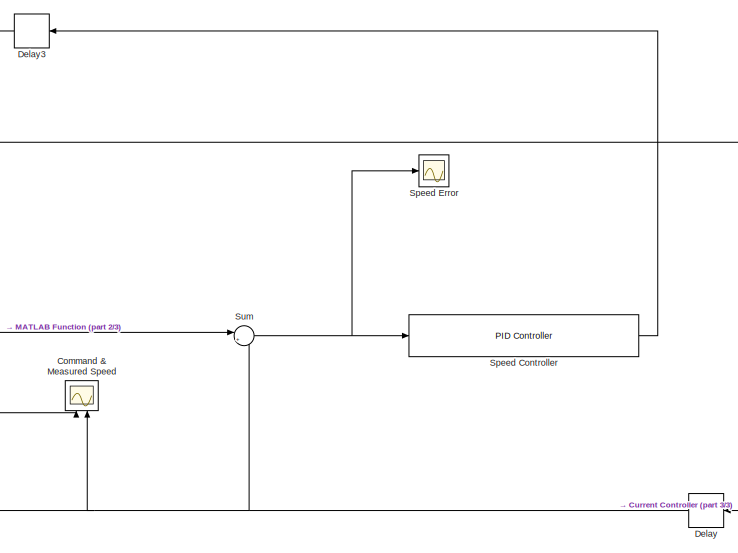
[diagram: root canvas - part 1/3, central region]
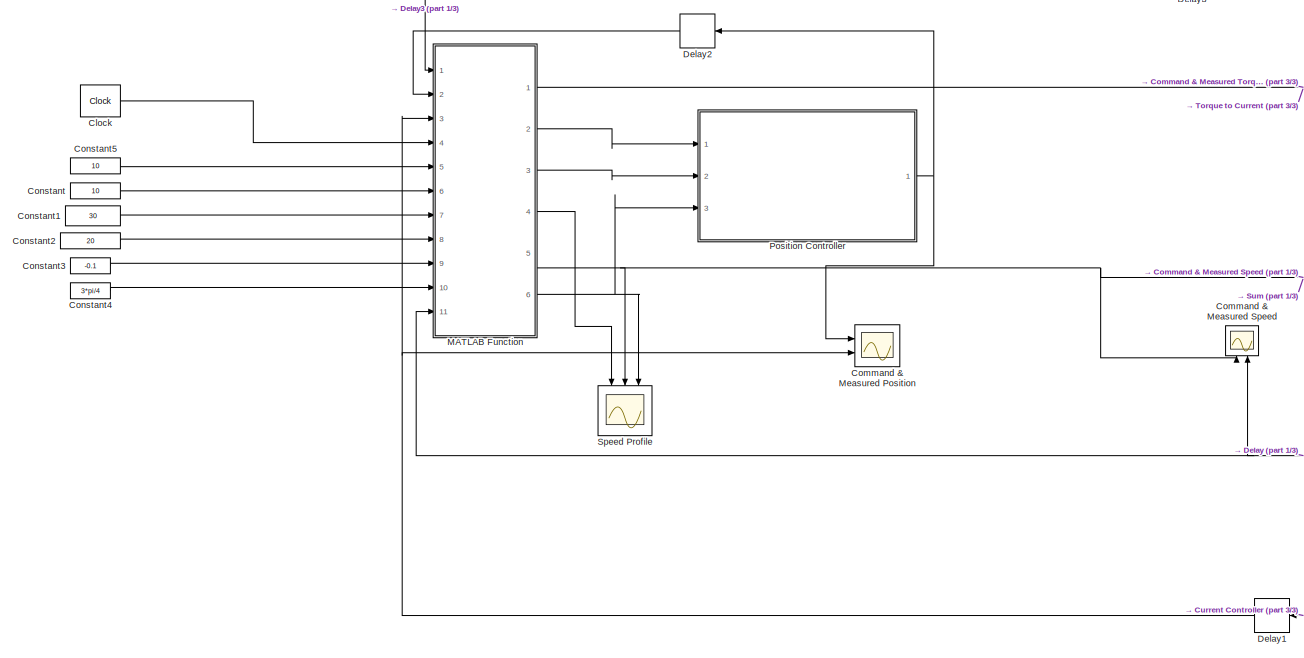
[diagram: root canvas - part 2/3, left side, full height]
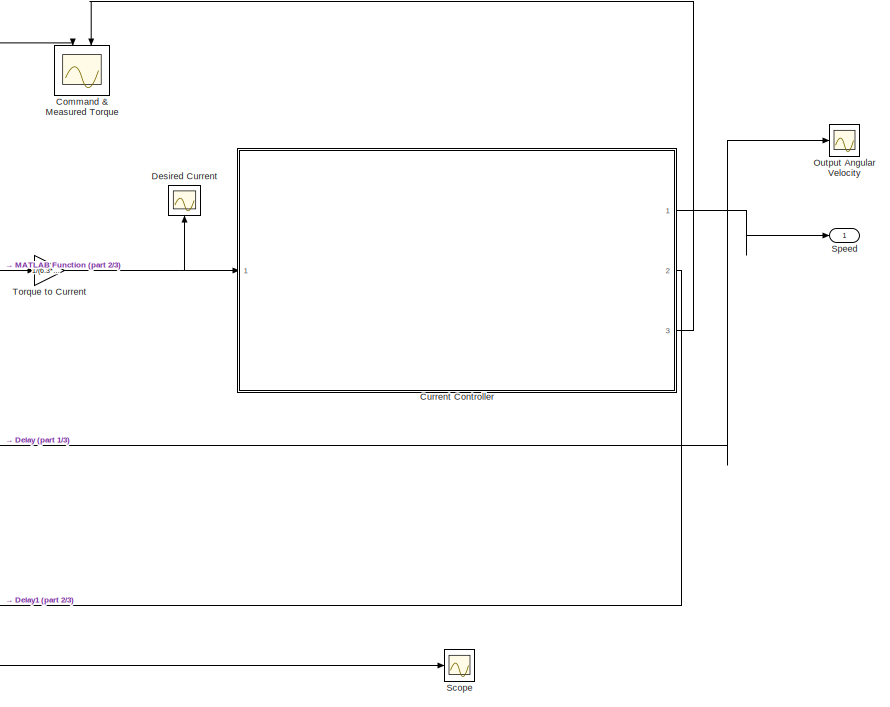
[diagram: root canvas - part 3/3, right side, full height]
MODEL slx_c3285ece72d7
KIND model
CONFIG AbsTol = 1e-4
CONFIG EnableMultiTasking = off
CONFIG FixedStep = auto
CONFIG MaxStep = 1
CONFIG MinStep = auto
CONFIG RelTol = 1e-4
CONFIG SampleTimeConstraint = Unconstrained
CONFIG SolverName = ode15s
CONFIG StartTime = 0.0
CONFIG StopTime = 35
BLOCK [Scope]  Output Angular Velocity
  Floating = off
  NumInputPorts = 1
  Ports = [1]
  ScopeSpecificationString = Simulink.scopes.TimeScopeBlockCfg('CurrentConfiguration', extmgr.ConfigurationSet(extmgr.Configuration('Core','General UI',true),extmgr.Configuration('Core','Source UI',true),extmgr.Configuration('Sources','WiredSimulink',true,'DataLoggingVariableName','ScopeData1'),extmgr.Configuration('Visuals','Time Domain',true,'SerializedDisplays',{struct('MinYLimReal','-90.58998','MaxYLimReal','90.49004','YL...<+1482ch>
BLOCK [Clock] Clock
BLOCK [Scope] Command & Measured Position
  Floating = off
  NumInputPorts = 2
  Ports = [2]
  ScopeSpecificationString = Simulink.scopes.TimeScopeBlockCfg('CurrentConfiguration', extmgr.ConfigurationSet(extmgr.Configuration('Core','General UI',true),extmgr.Configuration('Core','Source UI',true),extmgr.Configuration('Sources','WiredSimulink',true,'DataLoggingVariableName','ScopeData1'),extmgr.Configuration('Visuals','Time Domain',true,'SerializedDisplays',{struct('MinYLimReal','-1.33179','MaxYLimReal','1.32253','YLab...<+2131ch>
BLOCK [Scope] Command & Measured Speed
  Floating = off
  NameLocation = right
  NumInputPorts = 2
  Ports = [2]
  ScopeSpecificationString = Simulink.scopes.TimeScopeBlockCfg('CurrentConfiguration', extmgr.ConfigurationSet(extmgr.Configuration('Core','General UI',true),extmgr.Configuration('Core','Source UI',true),extmgr.Configuration('Sources','WiredSimulink',true,'DataLoggingVariableName','ScopeData1'),extmgr.Configuration('Visuals','Time Domain',true,'SerializedDisplays',{struct('MinYLimReal','-29.59546','MaxYLimReal','14.3995','YLa...<+2102ch>
BLOCK [Scope] Command & Measured Torque
  Floating = off
  NameLocation = left
  NumInputPorts = 2
  Ports = [2]
  ScopeSpecificationString = Simulink.scopes.TimeScopeBlockCfg('CurrentConfiguration', extmgr.ConfigurationSet(extmgr.Configuration('Core','General UI',true),extmgr.Configuration('Core','Source UI',true),extmgr.Configuration('Sources','WiredSimulink',true,'DataLoggingVariableName','ScopeData2'),extmgr.Configuration('Visuals','Time Domain',true,'SerializedDisplays',{struct('MinYLimReal','-1745.43532','MaxYLimReal','194.03252',...<+2142ch>
BLOCK [Constant] Constant
  Value = 10
BLOCK [Constant] Constant1
  Value = 30
BLOCK [Constant] Constant2
  Value = 20
BLOCK [Constant] Constant3
  Value = -0.1
BLOCK [Constant] Constant4
  Value = 3*pi/4
BLOCK [Constant] Constant5
  Value = 10
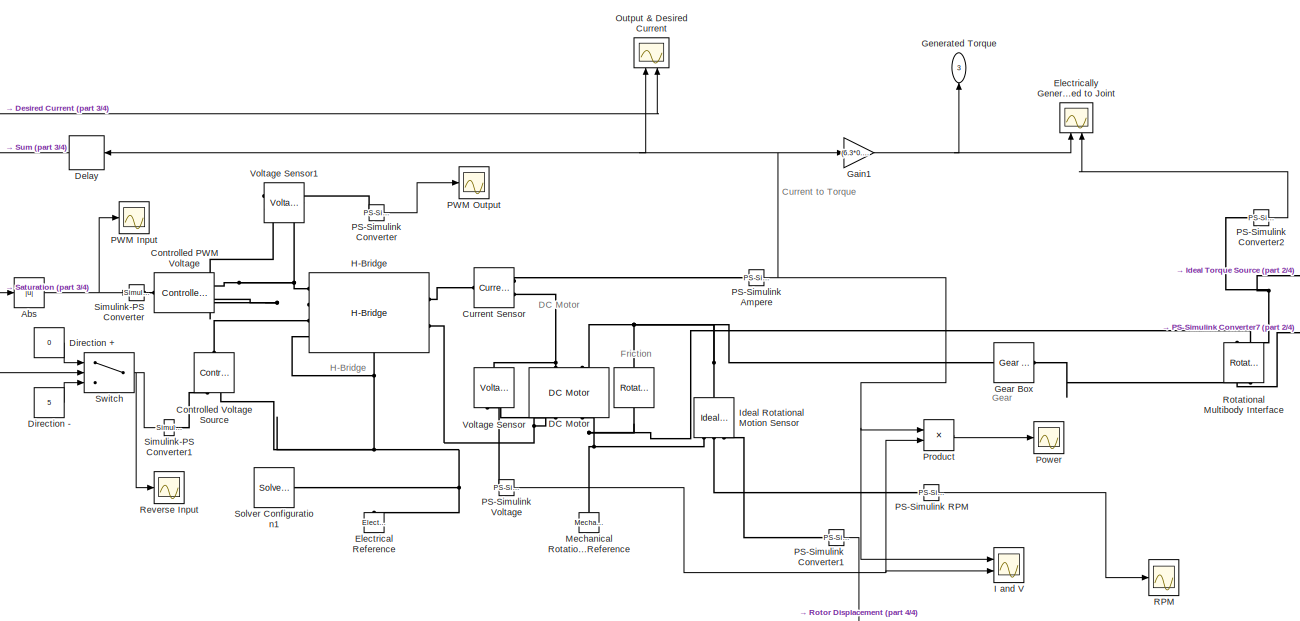
[diagram: Current Controller - part 1/4, center side, full height]
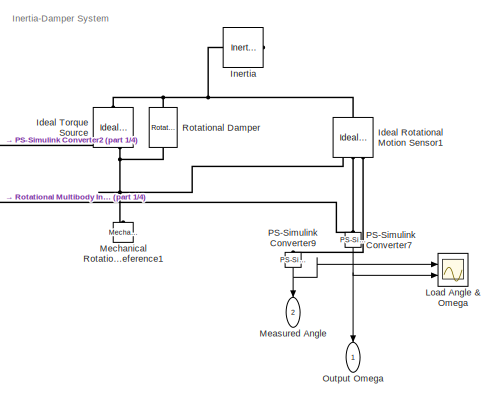
[diagram: Current Controller - part 2/4, middle right region]
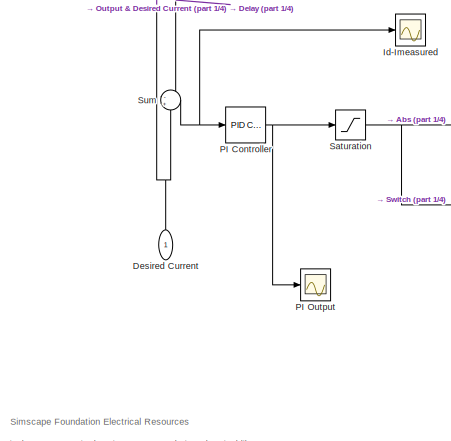
[diagram: Current Controller - part 3/4, middle left region]
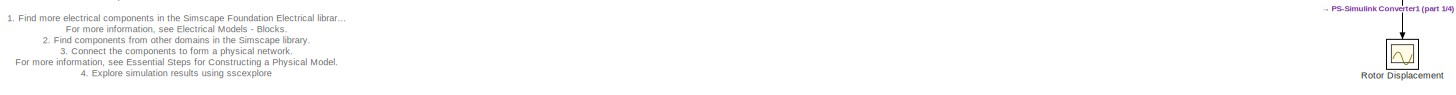
[diagram: Current Controller - part 4/4, bottom left region]
BLOCK [SubSystem] Current Controller
  Ports = [1, 3]
  RequestExecContextInheritance = off
BLOCK [Reference] Current Controller/   REF=fl_lib/Mechanical/Rotational Elements/Rotational Friction
  NameLocation = right
  Ports = [0, 0, 0, 0, 0, 1, 1]
  SourceBlock = fl_lib/Mechanical/Rotational Elements/Rotational Friction
  SourceProductBaseCode = SS
  SourceType = Rotational Friction
BLOCK [Abs] Current Controller/Abs
  SaturateOnIntegerOverflow = off
BLOCK [Reference] Current Controller/Controlled PWM Voltage  REF=ee_lib/Integrated Circuits/Controlled PWM
Voltage
  Ports = [0, 0, 0, 0, 0, 1, 2]
  SourceBlock = ee_lib/Integrated Circuits/Controlled PWM\nVoltage
  SourceProductBaseCode = PS
  SourceType = Controlled PWM\nVoltage
BLOCK [Reference] Current Controller/Controlled Voltage Source  REF=fl_lib/Electrical/Electrical Sources/Controlled Voltage
Source
  NameLocation = right
  Ports = [0, 0, 0, 0, 0, 1, 2]
  SourceBlock = fl_lib/Electrical/Electrical Sources/Controlled Voltage\nSource
  SourceProductBaseCode = SS
  SourceType = Controlled Voltage\nSource
BLOCK [Reference] Current Controller/Current Sensor  REF=fl_lib/Electrical/Electrical Sensors/Current Sensor
  Ports = [0, 0, 0, 0, 0, 1, 2]
  SourceBlock = fl_lib/Electrical/Electrical Sensors/Current Sensor
  SourceProductBaseCode = SS
  SourceType = Current Sensor
BLOCK [Reference] Current Controller/DC Motor  REF=ee_lib/Electromechanical/Brushed Motors/DC Motor
  Ports = [0, 0, 0, 0, 0, 2, 2]
  SourceBlock = ee_lib/Electromechanical/Brushed Motors/DC Motor
  SourceProductBaseCode = PS
  SourceType = DC Motor
BLOCK [Delay] Current Controller/Delay
  DelayLength = 1
  InputPortMap = u0
  NameLocation = top
  Ports = [1, 1]
BLOCK [Inport] Current Controller/Desired Current 
  NameLocation = right
BLOCK [Constant] Current Controller/Direction +
  Value = 0
BLOCK [Constant] Current Controller/Direction -
  Value = 5
BLOCK [Reference] Current Controller/Electrical Reference  REF=fl_lib/Electrical/Electrical Elements/Electrical Reference
  Ports = [0, 0, 0, 0, 0, 1]
  SourceBlock = fl_lib/Electrical/Electrical Elements/Electrical Reference
  SourceProductBaseCode = SS
  SourceType = Electrical Reference
BLOCK [Scope] Current Controller/Electrically Generated Torque and Torque Applied to Joint
  Floating = off
  NameLocation = right
  NumInputPorts = 2
  Ports = [2]
  ScopeSpecificationString = Simulink.scopes.TimeScopeBlockCfg('CurrentConfiguration', extmgr.ConfigurationSet(extmgr.Configuration('Core','General UI',true),extmgr.Configuration('Core','Source UI',true),extmgr.Configuration('Sources','WiredSimulink',true,'DataLoggingVariableName','ScopeData4'),extmgr.Configuration('Visuals','Time Domain',true,'SerializedDisplays',{struct('MinYLimReal','-0.01624','MaxYLimReal','0.14617','YLab...<+2175ch>
BLOCK [Gain] Current Controller/Gain1
  Gain = (6.3*0.95*(2.18e-2))
BLOCK [Reference] Current Controller/Gear Box  REF=fl_lib/Mechanical/Mechanisms/Gear Box
  Ports = [0, 0, 0, 0, 0, 1, 1]
  SourceBlock = fl_lib/Mechanical/Mechanisms/Gear Box
  SourceProductBaseCode = SS
  SourceType = Gear Box
BLOCK [Outport] Current Controller/Generated Torque
  NameLocation = right
  Port = 3
BLOCK [Reference] Current Controller/H-Bridge  REF=ee_lib/Semiconductors &
Converters/Converters/H-Bridge
  Ports = [0, 0, 0, 0, 0, 4, 2]
  SourceBlock = ee_lib/Semiconductors &\nConverters/Converters/H-Bridge
  SourceProductBaseCode = PS
  SourceType = H-Bridge
BLOCK [Scope] Current Controller/I and V
  Floating = off
  NumInputPorts = 2
  Ports = [2]
  ScopeSpecificationString = Simulink.scopes.TimeScopeBlockCfg('CurrentConfiguration', extmgr.ConfigurationSet(extmgr.Configuration('Core','General UI',true,'FigureColor',[0.313725490196078 0.313725490196078 0.313725490196078]),extmgr.Configuration('Core','Source UI',true),extmgr.Configuration('Sources','WiredSimulink',true,'DataLoggingVariableName','ScopeData3'),extmgr.Configuration('Visuals','Time Domain',true,'SerializedDi...<+2118ch>
BLOCK [Scope] Current Controller/Id-Imeasured
  Floating = off
  NumInputPorts = 1
  Ports = [1]
  ScopeSpecificationString = Simulink.scopes.TimeScopeBlockCfg('CurrentConfiguration', extmgr.ConfigurationSet(extmgr.Configuration('Core','General UI',true),extmgr.Configuration('Core','Source UI',true),extmgr.Configuration('Sources','WiredSimulink',true,'DataLoggingVariableName','ScopeData3'),extmgr.Configuration('Visuals','Time Domain',true,'SerializedDisplays',{struct('MinYLimReal','-3.24282','MaxYLimReal','3.68053','YLab...<+1406ch>
BLOCK [Reference] Current Controller/Ideal Rotational Motion Sensor  REF=fl_lib/Mechanical/Mechanical Sensors/Ideal Rotational
Motion Sensor
  NameLocation = right
  Ports = [0, 0, 0, 0, 0, 1, 3]
  SourceBlock = fl_lib/Mechanical/Mechanical Sensors/Ideal Rotational\nMotion Sensor
  SourceProductBaseCode = SS
  SourceType = Ideal Rotational\nMotion Sensor
BLOCK [Reference] Current Controller/Ideal Rotational Motion Sensor1  REF=fl_lib/Mechanical/Mechanical Sensors/Ideal Rotational
Motion Sensor
  NameLocation = left
  Ports = [0, 0, 0, 0, 0, 1, 3]
  SourceBlock = fl_lib/Mechanical/Mechanical Sensors/Ideal Rotational\nMotion Sensor
  SourceProductBaseCode = SS
  SourceType = Ideal Rotational\nMotion Sensor
BLOCK [Reference] Current Controller/Ideal Torque Source  REF=fl_lib/Mechanical/Mechanical Sources/Ideal Torque Source
  Ports = [0, 0, 0, 0, 0, 1, 2]
  SourceBlock = fl_lib/Mechanical/Mechanical Sources/Ideal Torque Source
  SourceProductBaseCode = SS
  SourceType = Ideal Torque Source
BLOCK [Reference] Current Controller/Inertia  REF=fl_lib/Mechanical/Rotational Elements/Inertia
  NameLocation = top
  Ports = [0, 0, 0, 0, 0, 1]
  SourceBlock = fl_lib/Mechanical/Rotational Elements/Inertia
  SourceProductBaseCode = SS
  SourceType = Inertia
BLOCK [Scope] Current Controller/Load Angle & Omega
  Floating = off
  NumInputPorts = 2
  Ports = [2]
  ScopeSpecificationString = Simulink.scopes.TimeScopeBlockCfg('CurrentConfiguration', extmgr.ConfigurationSet(extmgr.Configuration('Core','General UI',true),extmgr.Configuration('Core','Source UI',true),extmgr.Configuration('Sources','WiredSimulink',true,'DataLoggingVariableName','ScopeData1'),extmgr.Configuration('Visuals','Time Domain',true,'SerializedDisplays',{struct('MinYLimReal','-471.84945','MaxYLimReal','219.55776','...<+2121ch>
BLOCK [Outport] Current Controller/Measured Angle 
  NameLocation = left
  Port = 2
BLOCK [Reference] Current Controller/Mechanical Rotational Reference  REF=fl_lib/Mechanical/Rotational Elements/Mechanical
Rotational Reference
  NameLocation = right
  Ports = [0, 0, 0, 0, 0, 1]
  SourceBlock = fl_lib/Mechanical/Rotational Elements/Mechanical\nRotational Reference
  SourceProductBaseCode = SS
  SourceType = Mechanical\nRotational Reference
BLOCK [Reference] Current Controller/Mechanical Rotational Reference1  REF=fl_lib/Mechanical/Rotational Elements/Mechanical
Rotational Reference
  NameLocation = right
  Ports = [0, 0, 0, 0, 0, 1]
  SourceBlock = fl_lib/Mechanical/Rotational Elements/Mechanical\nRotational Reference
  SourceProductBaseCode = SS
  SourceType = Mechanical\nRotational Reference
BLOCK [Scope] Current Controller/Output & Desired Current
  Floating = off
  NameLocation = right
  NumInputPorts = 2
  Ports = [2]
  ScopeSpecificationString = Simulink.scopes.TimeScopeBlockCfg('CurrentConfiguration', extmgr.ConfigurationSet(extmgr.Configuration('Core','General UI',true),extmgr.Configuration('Core','Source UI',true),extmgr.Configuration('Sources','WiredSimulink',true,'DataLoggingVariableName','ScopeData2'),extmgr.Configuration('Visuals','Time Domain',true,'SerializedDisplays',{struct('MinYLimReal','-2.44326','MaxYLimReal','1.35065','YLab...<+2067ch>
BLOCK [Outport] Current Controller/Output Omega
  NameLocation = left
BLOCK [Reference] Current Controller/PI Controller  REF=slpidlib/PID Controller
  Ports = [1, 1]
  SourceBlock = slpidlib/PID Controller
  SourceProductBaseCode = SL
  SourceType = PID 1dof
BLOCK [Scope] Current Controller/PI Output
  Floating = off
  NumInputPorts = 1
  Ports = [1]
  ScopeSpecificationString = Simulink.scopes.TimeScopeBlockCfg('CurrentConfiguration', extmgr.ConfigurationSet(extmgr.Configuration('Core','General UI',true),extmgr.Configuration('Core','Source UI',true),extmgr.Configuration('Sources','WiredSimulink',true,'DataLoggingVariableName','ScopeData2'),extmgr.Configuration('Visuals','Time Domain',true,'SerializedDisplays',{struct('MinYLimReal','-3.75','MaxYLimReal','33.75','YLabelRea...<+1431ch>
BLOCK [Reference] Current Controller/PS-Simulink Ampere  REF=nesl_utility/PS-Simulink
Converter
  Ports = [0, 1, 0, 0, 0, 1]
  SourceBlock = nesl_utility/PS-Simulink\nConverter
  SourceProductBaseCode = PW,SS
  SourceType = PS-Simulink\nConverter
BLOCK [Reference] Current Controller/PS-Simulink Converter  REF=nesl_utility/PS-Simulink
Converter
  Ports = [0, 1, 0, 0, 0, 1]
  SourceBlock = nesl_utility/PS-Simulink\nConverter
  SourceProductBaseCode = PW,SS
  SourceType = PS-Simulink\nConverter
BLOCK [Reference] Current Controller/PS-Simulink Converter1  REF=nesl_utility/PS-Simulink
Converter
  Ports = [0, 1, 0, 0, 0, 1]
  SourceBlock = nesl_utility/PS-Simulink\nConverter
  SourceProductBaseCode = PW,SS
  SourceType = PS-Simulink\nConverter
BLOCK [Reference] Current Controller/PS-Simulink Converter2  REF=nesl_utility/PS-Simulink
Converter
  Ports = [0, 1, 0, 0, 0, 1]
  SourceBlock = nesl_utility/PS-Simulink\nConverter
  SourceProductBaseCode = PW,SS
  SourceType = PS-Simulink\nConverter
BLOCK [Reference] Current Controller/PS-Simulink Converter7  REF=nesl_utility/PS-Simulink
Converter
  NameLocation = left
  Ports = [0, 1, 0, 0, 0, 1]
  SourceBlock = nesl_utility/PS-Simulink\nConverter
  SourceProductBaseCode = PW,SS
  SourceType = PS-Simulink\nConverter
BLOCK [Reference] Current Controller/PS-Simulink Converter9  REF=nesl_utility/PS-Simulink
Converter
  NameLocation = left
  Ports = [0, 1, 0, 0, 0, 1]
  SourceBlock = nesl_utility/PS-Simulink\nConverter
  SourceProductBaseCode = PW,SS
  SourceType = PS-Simulink\nConverter
BLOCK [Reference] Current Controller/PS-Simulink RPM  REF=nesl_utility/PS-Simulink
Converter
  Ports = [0, 1, 0, 0, 0, 1]
  SourceBlock = nesl_utility/PS-Simulink\nConverter
  SourceProductBaseCode = PW,SS
  SourceType = PS-Simulink\nConverter
BLOCK [Reference] Current Controller/PS-Simulink Voltage  REF=nesl_utility/PS-Simulink
Converter
  Ports = [0, 1, 0, 0, 0, 1]
  SourceBlock = nesl_utility/PS-Simulink\nConverter
  SourceProductBaseCode = PW,SS
  SourceType = PS-Simulink\nConverter
BLOCK [Scope] Current Controller/PWM Input
  Floating = off
  NumInputPorts = 1
  Ports = [1]
  ScopeSpecificationString = Simulink.scopes.TimeScopeBlockCfg('CurrentConfiguration', extmgr.ConfigurationSet(extmgr.Configuration('Core','General UI',true),extmgr.Configuration('Core','Source UI',true),extmgr.Configuration('Sources','WiredSimulink',true,'DataLoggingVariableName','ScopeData1'),extmgr.Configuration('Visuals','Time Domain',true,'SerializedDisplays',{struct('MinYLimReal','-1.5','MaxYLimReal','13.5','YLabelReal'...<+1415ch>
BLOCK [Scope] Current Controller/PWM Output
  Floating = off
  NumInputPorts = 1
  Ports = [1]
  ScopeSpecificationString = Simulink.scopes.TimeScopeBlockCfg('CurrentConfiguration', extmgr.ConfigurationSet(extmgr.Configuration('Core','General UI',true),extmgr.Configuration('Core','Source UI',true),extmgr.Configuration('Sources','WiredSimulink',true,'DataLoggingVariableName','ScopeData6'),extmgr.Configuration('Visuals','Time Domain',true,'SerializedDisplays',{struct('MinYLimReal','-1.5','MaxYLimReal','13.5','YLabelReal'...<+1715ch>
BLOCK [Scope] Current Controller/Power
  Floating = off
  NumInputPorts = 1
  Ports = [1]
  ScopeSpecificationString = Simulink.scopes.TimeScopeBlockCfg('CurrentConfiguration', extmgr.ConfigurationSet(extmgr.Configuration('Core','General UI',true),extmgr.Configuration('Core','Source UI',true),extmgr.Configuration('Sources','WiredSimulink',true,'DataLoggingVariableName','ScopeData1'),extmgr.Configuration('Visuals','Time Domain',true,'SerializedDisplays',{struct('MinYLimReal','-605617.98059','MaxYLimReal','67320.854...<+1446ch>
BLOCK [Product] Current Controller/Product
  Ports = [2, 1]
BLOCK [Scope] Current Controller/RPM 
  Floating = off
  NumInputPorts = 1
  Ports = [1]
  ScopeSpecificationString = Simulink.scopes.TimeScopeBlockCfg('CurrentConfiguration', extmgr.ConfigurationSet(extmgr.Configuration('Core','General UI',true),extmgr.Configuration('Core','Source UI',true),extmgr.Configuration('Sources','WiredSimulink',true,'DataLoggingVariableName','ScopeData7'),extmgr.Configuration('Visuals','Time Domain',true,'SerializedDisplays',{struct('MinYLimReal','-66.24589','MaxYLimReal','596.21303','Y...<+1564ch>
BLOCK [Scope] Current Controller/Reverse Input
  Floating = off
  NumInputPorts = 1
  Ports = [1]
  ScopeSpecificationString = Simulink.scopes.TimeScopeBlockCfg('CurrentConfiguration', extmgr.ConfigurationSet(extmgr.Configuration('Core','General UI',true),extmgr.Configuration('Core','Source UI',true),extmgr.Configuration('Sources','WiredSimulink',true,'DataLoggingVariableName','ScopeData4'),extmgr.Configuration('Visuals','Time Domain',true,'SerializedDisplays',{struct('MinYLimReal','1.18733','MaxYLimReal','7.43733','YLabe...<+1462ch>
BLOCK [Reference] Current Controller/Rotational Damper  REF=fl_lib/Mechanical/Rotational Elements/Rotational Damper
  NameLocation = top
  Ports = [0, 0, 0, 0, 0, 1, 1]
  SourceBlock = fl_lib/Mechanical/Rotational Elements/Rotational Damper
  SourceProductBaseCode = SS
  SourceType = Rotational Damper
BLOCK [Reference] Current Controller/Rotational Multibody Interface  REF=fl_lib/Mechanical/Multibody Interfaces/Rotational Multibody
Interface
  NameLocation = left
  Ports = [0, 0, 0, 0, 0, 2, 2]
  SourceBlock = fl_lib/Mechanical/Multibody Interfaces/Rotational Multibody\nInterface
  SourceProductBaseCode = SS
  SourceType = Rotational Multibody\nInterface
BLOCK [Scope] Current Controller/Rotor Displacement
  Floating = off
  NumInputPorts = 1
  Ports = [1]
  ScopeSpecificationString = Simulink.scopes.TimeScopeBlockCfg('CurrentConfiguration', extmgr.ConfigurationSet(extmgr.Configuration('Core','General UI',true),extmgr.Configuration('Core','Source UI',true),extmgr.Configuration('Sources','WiredSimulink',true,'DataLoggingVariableName','ScopeData1'),extmgr.Configuration('Visuals','Time Domain',true,'SerializedDisplays',{struct('MinYLimReal','-0.0000000000000000000000000003','MaxYL...<+1637ch>
BLOCK [Saturate] Current Controller/Saturation
  LowerLimit = -12
  UpperLimit = 12
BLOCK [Reference] Current Controller/Simulink-PS Converter  REF=nesl_utility/Simulink-PS
Converter
  Ports = [1, 0, 0, 0, 0, 0, 1]
  SourceBlock = nesl_utility/Simulink-PS\nConverter
  SourceProductBaseCode = PW,SS
  SourceType = Simulink-PS\nConverter
BLOCK [Reference] Current Controller/Simulink-PS Converter1  REF=nesl_utility/Simulink-PS
Converter
  Ports = [1, 0, 0, 0, 0, 0, 1]
  SourceBlock = nesl_utility/Simulink-PS\nConverter
  SourceProductBaseCode = PW,SS
  SourceType = Simulink-PS\nConverter
BLOCK [Reference] Current Controller/Solver Configuration1  REF=nesl_utility/Solver
Configuration
  Ports = [0, 0, 0, 0, 0, 0, 1]
  SourceBlock = nesl_utility/Solver\nConfiguration
  SourceProductBaseCode = PW,SS
  SourceType = Solver\nConfiguration
BLOCK [Sum] Current Controller/Sum
  Inputs = -+
  NameLocation = top
  Ports = [2, 1]
BLOCK [Switch] Current Controller/Switch
  Criteria = u2 > Threshold
  InputSameDT = off
  SaturateOnIntegerOverflow = off
BLOCK [Reference] Current Controller/Voltage Sensor  REF=fl_lib/Electrical/Electrical Sensors/Voltage Sensor
  NameLocation = left
  Ports = [0, 0, 0, 0, 0, 1, 2]
  SourceBlock = fl_lib/Electrical/Electrical Sensors/Voltage Sensor
  SourceProductBaseCode = SS
  SourceType = Voltage Sensor
BLOCK [Reference] Current Controller/Voltage Sensor1  REF=fl_lib/Electrical/Electrical Sensors/Voltage Sensor
  Ports = [0, 0, 0, 0, 0, 1, 2]
  SourceBlock = fl_lib/Electrical/Electrical Sensors/Voltage Sensor
  SourceProductBaseCode = SS
  SourceType = Voltage Sensor
BLOCK [Delay] Delay
  DelayLength = 1
  InputPortMap = u0
  NameLocation = top
  Ports = [1, 1]
BLOCK [Delay] Delay1
  DelayLength = 1
  InputPortMap = u0
  NameLocation = top
  Ports = [1, 1]
BLOCK [Delay] Delay2
  DelayLength = 1
  InputPortMap = u0
  NameLocation = top
  Ports = [1, 1]
BLOCK [Delay] Delay3
  DelayLength = 1
  InputPortMap = u0
  NameLocation = top
  Ports = [1, 1]
BLOCK [Scope] Desired Current
  Floating = off
  NameLocation = top
  NumInputPorts = 1
  Ports = [1]
  ScopeSpecificationString = Simulink.scopes.TimeScopeBlockCfg('CurrentConfiguration', extmgr.ConfigurationSet(extmgr.Configuration('Core','General UI',true),extmgr.Configuration('Core','Source UI',true),extmgr.Configuration('Sources','WiredSimulink',true,'DataLoggingVariableName','ScopeData3'),extmgr.Configuration('Visuals','Time Domain',true,'SerializedDisplays',{struct('MinYLimReal','-13377.75107','MaxYLimReal','1487.14693...<+1511ch>
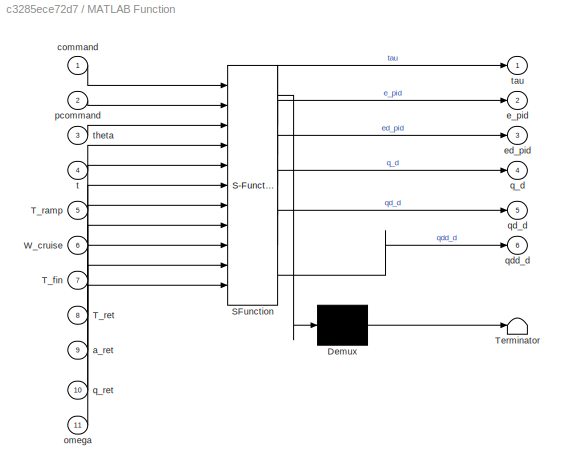
BLOCK [SubSystem] MATLAB Function
  ErrorFcn = Stateflow.Translate.translate
  PermitHierarchicalResolution = ExplicitOnly
  Ports = [11, 6]
  RequestExecContextInheritance = off
  SFBlockType = MATLAB Function
  TreatAsAtomicUnit = on
BLOCK [Demux] MATLAB Function/ Demux 
  Outputs = 1
  Ports = [1, 1]
BLOCK [S-Function] MATLAB Function/ SFunction 
  EnableBusSupport = on
  FunctionName = sf_sfun
  PortCounts = [11 7]
  Ports = [11, 7]
  SFcnIsStateOwnerBlock = off
  SFunctionDeploymentMode = off
  Tag = Stateflow S-Function 2
BLOCK [Terminator] MATLAB Function/ Terminator 
BLOCK [Inport] MATLAB Function/T_fin
  Port = 7
BLOCK [Inport] MATLAB Function/T_ramp
  Port = 5
BLOCK [Inport] MATLAB Function/T_ret
  Port = 8
BLOCK [Inport] MATLAB Function/W_cruise
  Port = 6
BLOCK [Inport] MATLAB Function/a_ret
  Port = 9
BLOCK [Inport] MATLAB Function/command
BLOCK [Outport] MATLAB Function/e_pid
  Port = 2
BLOCK [Outport] MATLAB Function/ed_pid
  Port = 3
BLOCK [Inport] MATLAB Function/omega
  Port = 11
BLOCK [Inport] MATLAB Function/pcommand
  Port = 2
BLOCK [Outport] MATLAB Function/q_d
  Port = 4
BLOCK [Inport] MATLAB Function/q_ret
  Port = 10
BLOCK [Outport] MATLAB Function/qd_d
  Port = 5
BLOCK [Outport] MATLAB Function/qdd_d
  Port = 6
BLOCK [Inport] MATLAB Function/t
  Port = 4
BLOCK [Outport] MATLAB Function/tau
BLOCK [Inport] MATLAB Function/theta
  Port = 3
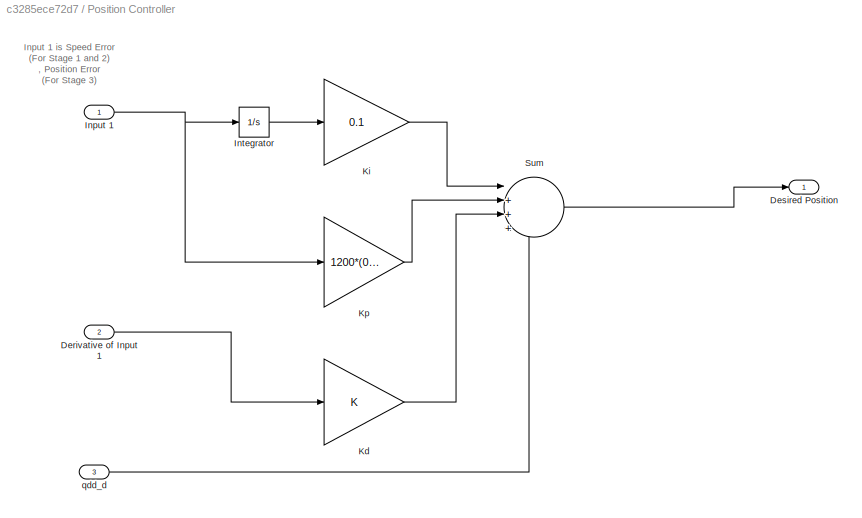
BLOCK [SubSystem] Position Controller 
  Ports = [3, 1]
  RequestExecContextInheritance = off
BLOCK [Inport] Position Controller /Derivative of Input 1
  Port = 2
BLOCK [Outport] Position Controller /Desired Position
BLOCK [Inport] Position Controller /Input 1
BLOCK [Integrator] Position Controller /Integrator
  Ports = [1, 1]
BLOCK [Gain] Position Controller /Kd
BLOCK [Gain] Position Controller /Ki
  Gain = 0.1
BLOCK [Gain] Position Controller /Kp
  Gain = 1200*(0.00234)*(1/10)*(1/10)
BLOCK [Sum] Position Controller /Sum
  Inputs = |++++
  Ports = [4, 1]
BLOCK [Inport] Position Controller /qdd_d
  Port = 3
BLOCK [Scope] Scope
  Floating = off
  NumInputPorts = 1
  Ports = [1]
  ScopeSpecificationString = Simulink.scopes.TimeScopeBlockCfg('CurrentConfiguration', extmgr.ConfigurationSet(extmgr.Configuration('Core','General UI',true),extmgr.Configuration('Core','Source UI',true),extmgr.Configuration('Sources','WiredSimulink',true,'DataLoggingVariableName','ScopeData1'),extmgr.Configuration('Visuals','Time Domain',true,'SerializedDisplays',{struct('MinYLimReal','-20.78908','MaxYLimReal','170.70303','Y...<+1513ch>
BLOCK [Outport] Speed
BLOCK [Reference] Speed  Controller  REF=slpidlib/PID Controller
  Ports = [1, 1]
  SourceBlock = slpidlib/PID Controller
  SourceProductBaseCode = SL
  SourceType = PID 1dof
BLOCK [Scope] Speed Error
  Floating = off
  NumInputPorts = 1
  Ports = [1]
  ScopeSpecificationString = Simulink.scopes.TimeScopeBlockCfg('CurrentConfiguration', extmgr.ConfigurationSet(extmgr.Configuration('Core','General UI',true),extmgr.Configuration('Core','Source UI',true),extmgr.Configuration('Sources','WiredSimulink',true,'DataLoggingVariableName','ScopeData7'),extmgr.Configuration('Visuals','Time Domain',true,'SerializedDisplays',{struct('MinYLimReal','-2.03405','MaxYLimReal','2.03012','YLab...<+1406ch>
BLOCK [Scope] Speed Profile
  Floating = off
  NameLocation = left
  NumInputPorts = 3
  Ports = [3]
  ScopeSpecificationString = Simulink.scopes.TimeScopeBlockCfg('CurrentConfiguration', extmgr.ConfigurationSet(extmgr.Configuration('Core','General UI',true),extmgr.Configuration('Core','Source UI',true),extmgr.Configuration('Sources','WiredSimulink',true,'DataLoggingVariableName','ScopeData2'),extmgr.Configuration('Visuals','Time Domain',true,'SerializedDisplays',{struct('MinYLimReal','-18.74999','MaxYLimReal','168.74992','Y...<+2893ch>
BLOCK [Sum] Sum
  Inputs = |+-
  Ports = [2, 1]
BLOCK [Gain] Torque to Current
  Gain = 1/(6.3*0.95*(2.18e-2))
  NameLocation = top
ANNOTATION Current Controller: DC Motor
ANNOTATION Current Controller: 1. Find more electrical components in the Simscape Foundation Electrical library . For more information, see Electrical Models - Blocks . 2. Find components from other domains in the Simscape library . 3. Connect the components to form a physical network. For more information, see Essential Steps for Constructing a Physical Model . 4. Explore simulation results using sscexplore
ANNOTATION Current Controller: Current to Torque
ANNOTATION Current Controller: Friction
ANNOTATION Current Controller: Gear
ANNOTATION Current Controller: H-Bridge
ANNOTATION Current Controller: Inertia-Damper System
ANNOTATION Current Controller: Simscape Foundation Electrical Resources
ANNOTATION Position Controller : Input 1 is Speed Error (For Stage 1 and 2) , Position Error (For Stage 3)
LINE Clock:1 -> MATLAB Function:4
LINE Constant1:1 -> MATLAB Function:7
LINE Constant2:1 -> MATLAB Function:8
LINE Constant3:1 -> MATLAB Function:9
LINE Constant4:1 -> MATLAB Function:10
LINE Constant5:1 -> MATLAB Function:5
LINE Constant:1 -> MATLAB Function:6
NET Current Controller/Abs:1 -> Current Controller/PWM Input:1, Current Controller/Simulink-PS Converter:1
LINE Current Controller/Delay:1 -> Current Controller/Sum:1
NET Current Controller/Desired Current :1 -> Current Controller/Output & Desired Current:2, Current Controller/Sum:2
LINE Current Controller/Direction +:1 -> Current Controller/Switch:1
LINE Current Controller/Direction -:1 -> Current Controller/Switch:3
NET Current Controller/Gain1:1 -> Current Controller/Electrically Generated Torque and Torque Applied to Joint:1, Current Controller/Generated Torque:1
NET Current Controller/PI Controller:1 -> Current Controller/PI Output:1, Current Controller/Saturation:1
NET Current Controller/PS-Simulink Ampere:1 -> Current Controller/Delay:1, Current Controller/Gain1:1, Current Controller/I and V:1, Current Controller/Output & Desired Current:1, Current Controller/Product:1
LINE Current Controller/PS-Simulink Converter1:1 -> Current Controller/Rotor Displacement:1
LINE Current Controller/PS-Simulink Converter2:1 -> Current Controller/Electrically Generated Torque and Torque Applied to Joint:2
NET Current Controller/PS-Simulink Converter7:1 -> Current Controller/Load Angle & Omega:2, Current Controller/Output Omega:1
NET Current Controller/PS-Simulink Converter9:1 -> Current Controller/Load Angle & Omega:1, Current Controller/Measured Angle :1
LINE Current Controller/PS-Simulink Converter:1 -> Current Controller/PWM Output:1
LINE Current Controller/PS-Simulink RPM:1 -> Current Controller/RPM :1
NET Current Controller/PS-Simulink Voltage:1 -> Current Controller/I and V:2, Current Controller/Product:2
LINE Current Controller/Product:1 -> Current Controller/Power:1
NET Current Controller/Saturation:1 -> Current Controller/Abs:1, Current Controller/Switch:2
NET Current Controller/Sum:1 -> Current Controller/Id-Imeasured:1, Current Controller/PI Controller:1
NET Current Controller/Switch:1 -> Current Controller/Reverse Input:1, Current Controller/Simulink-PS Converter1:1
NET Current Controller:1 ->  Output Angular Velocity:1, Delay:1, Speed:1
NET Current Controller:2 -> Delay1:1, Scope:1
LINE Current Controller:3 -> Command & Measured Torque:2
NET Delay1:1 -> Command & Measured Position:2, MATLAB Function:3
LINE Delay2:1 -> MATLAB Function:2
LINE Delay3:1 -> MATLAB Function:1
NET Delay:1 -> Command & Measured Speed:2, MATLAB Function:11, Sum:2
NET MATLAB Function:1 -> Command & Measured Torque:1, Torque to Current:1
LINE MATLAB Function:2 -> Position Controller :1
LINE MATLAB Function:3 -> Position Controller :2
LINE MATLAB Function:4 -> Speed Profile:1
NET MATLAB Function:5 -> Command & Measured Speed:1, Speed Profile:2, Sum:1
NET MATLAB Function:6 -> Position Controller :3, Speed Profile:3
LINE Position Controller /Derivative of Input 1:1 -> Position Controller /Kd:1
NET Position Controller /Input 1:1 -> Position Controller /Integrator:1, Position Controller /Kp:1
LINE Position Controller /Integrator:1 -> Position Controller /Ki:1
LINE Position Controller /Kd:1 -> Position Controller /Sum:3
LINE Position Controller /Ki:1 -> Position Controller /Sum:1
LINE Position Controller /Kp:1 -> Position Controller /Sum:2
LINE Position Controller /Sum:1 -> Position Controller /Desired Position:1
LINE Position Controller /qdd_d:1 -> Position Controller /Sum:4
NET Position Controller :1 -> Command & Measured Position:1, Delay2:1
LINE Speed  Controller:1 -> Delay3:1
NET Sum:1 -> Speed  Controller:1, Speed Error:1
NET Torque to Current:1 -> Current Controller:1, Desired Current:1
PNET net1: Current Controller/ :LConn1 -- Current Controller/DC Motor:RConn2 -- Current Controller/Ideal Rotational Motion Sensor:RConn1 -- Current Controller/Mechanical Rotational Reference:LConn1 -- Current Controller/Rotational Multibody Interface:LConn2
PNET net2: Current Controller/ :RConn1 -- Current Controller/DC Motor:LConn2 -- Current Controller/Gear Box:LConn1 -- Current Controller/Ideal Rotational Motion Sensor:LConn1
PLINE Current Controller/Controlled PWM Voltage:LConn1 -- Current Controller/Simulink-PS Converter:RConn1
PNET net3: Current Controller/Controlled PWM Voltage:RConn1 -- Current Controller/H-Bridge:LConn1 -- Current Controller/Voltage Sensor1:LConn1
PNET net4: Current Controller/Controlled PWM Voltage:RConn2 -- Current Controller/Controlled Voltage Source:RConn2 -- Current Controller/DC Motor:RConn1 -- Current Controller/Electrical Reference:LConn1 -- Current Controller/H-Bridge:LConn2 -- Current Controller/H-Bridge:LConn4 -- Current Controller/H-Bridge:RConn2 -- Current Controller/Solver Configuration1:RConn1 -- Current Controller/Voltage Sensor1:RConn2 -- Current Controller/Voltage Sensor:RConn2
PLINE Current Controller/Controlled Voltage Source:LConn1 -- Current Controller/H-Bridge:LConn3
PLINE Current Controller/Controlled Voltage Source:RConn1 -- Current Controller/Simulink-PS Converter1:RConn1
PLINE Current Controller/Current Sensor:LConn1 -- Current Controller/H-Bridge:RConn1
PLINE Current Controller/Current Sensor:RConn1 -- Current Controller/PS-Simulink Ampere:LConn1
PNET net5: Current Controller/Current Sensor:RConn2 -- Current Controller/DC Motor:LConn1 -- Current Controller/Voltage Sensor:LConn1
PLINE Current Controller/Gear Box:RConn1 -- Current Controller/Rotational Multibody Interface:RConn2
PNET net6: Current Controller/Ideal Rotational Motion Sensor1:LConn1 -- Current Controller/Ideal Torque Source:LConn1 -- Current Controller/Inertia:LConn1 -- Current Controller/Rotational Damper:RConn1
PNET net7: Current Controller/Ideal Rotational Motion Sensor1:RConn1 -- Current Controller/Ideal Torque Source:RConn2 -- Current Controller/Mechanical Rotational Reference1:LConn1 -- Current Controller/Rotational Damper:LConn1
PNET net8: Current Controller/Ideal Rotational Motion Sensor1:RConn2 -- Current Controller/PS-Simulink Converter7:LConn1 -- Current Controller/Rotational Multibody Interface:RConn1
PLINE Current Controller/Ideal Rotational Motion Sensor1:RConn3 -- Current Controller/PS-Simulink Converter9:LConn1
PLINE Current Controller/Ideal Rotational Motion Sensor:RConn2 -- Current Controller/PS-Simulink RPM:LConn1
PLINE Current Controller/Ideal Rotational Motion Sensor:RConn3 -- Current Controller/PS-Simulink Converter1:LConn1
PNET net9: Current Controller/Ideal Torque Source:RConn1 -- Current Controller/PS-Simulink Converter2:LConn1 -- Current Controller/Rotational Multibody Interface:LConn1
PLINE Current Controller/PS-Simulink Converter:LConn1 -- Current Controller/Voltage Sensor1:RConn1
PLINE Current Controller/PS-Simulink Voltage:LConn1 -- Current Controller/Voltage Sensor:RConn1
note: NET lines group one-source signal fan-out (src -> all destinations, sorted); 1:1 wires keep LINE; PNET lines group multi-terminal physical nets as a canonical sorted terminal list (undirected conserving connections); 2-terminal nets keep the pairwise PLINE form
CHART MATLAB Function states=1 transitions=1
  STATE_LABEL 'eML_blk_kernel()'
  STATE_LABEL 'SCRIPT:\nfunction [tau, e_pid, ed_pid, q_d, qd_d, qdd_d] = fcn(command, pcommand, theta, t, T_ramp, W_cruise, T_fin, T_ret, a_ret, q_ret, omega)\n    \n    if (t <= T_ramp)\n        q_d = 0.5 * W_cruise * t^2/T_ramp;\n        qd_d = W_cruise * t/T_ramp;\n        qdd_d = W_cruise/T_ramp;\n        e_pid = qd_d - omega;\n        tau = command;\n        q_0 = []; q_1 = []; q_2 = []; q_3 = []; ed_pid = 0;\n\n    ...<+1179ch>'
CHART  states=0 transitions=0
